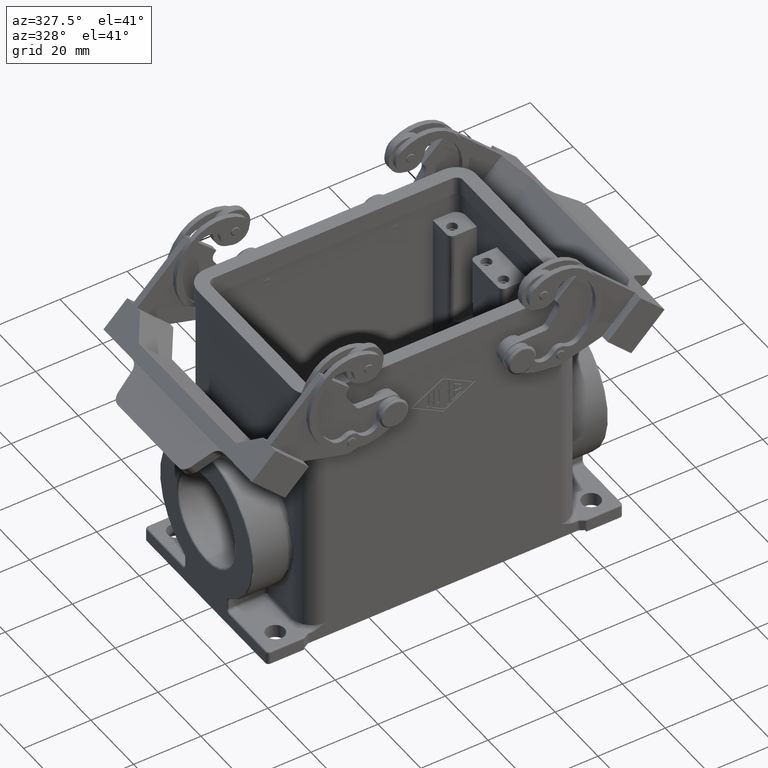
[diagram: clean part render]
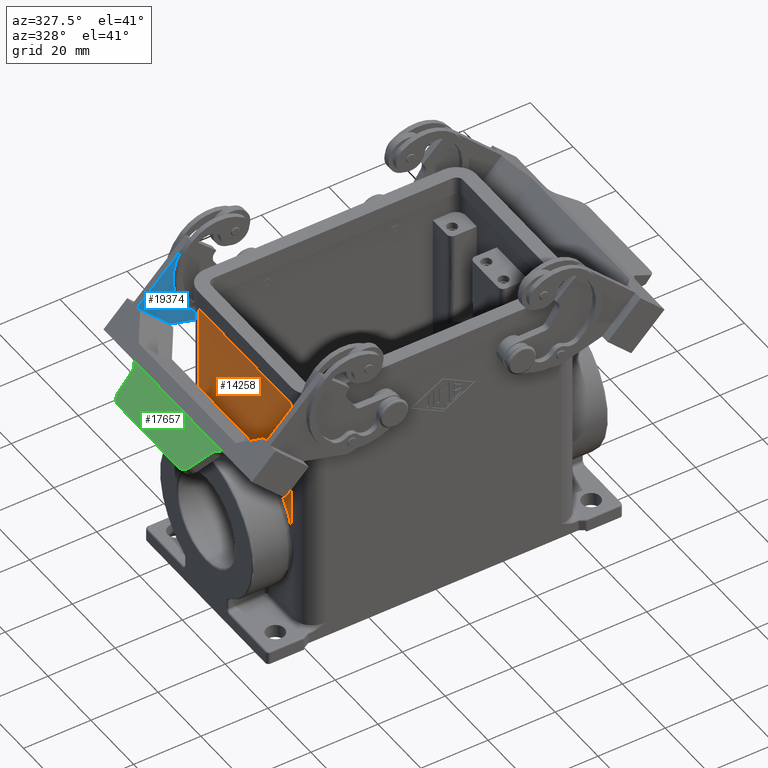
[diagram: same view with three faces highlighted in distinct colors, each labeled with its STEP entity id]
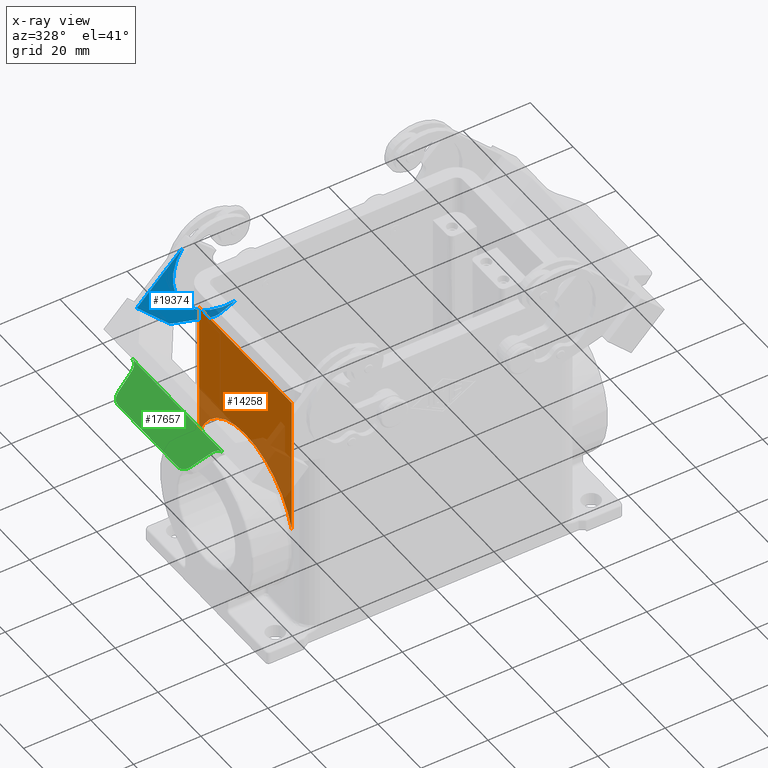
[diagram: x-ray of the same camera — body ghosted, the three highlighted faces saturated]
A machine part, auxiliary view with three faces highlighted in distinct colors.
The next image is the same camera in x-ray (body ghosted, the three faces saturated) — at least one of them is partly hidden behind the body in this view.
Their STEP definitions:

[orange] entity #14258 — the highlighted planar face has unit normal (-1, 0, 0).
#8415=CARTESIAN_POINT('',(-41.250000000000000,2.991101E-015,-2.250000000000007));
#8416=VERTEX_POINT('',#8415);
#8432=CARTESIAN_POINT('',(-41.249999999999986,-21.650000000000020,-18.011437916137609));
#8433=VERTEX_POINT('',#8432);
#8441=CARTESIAN_POINT('',(-41.250000000000000,2.051220E-016,-25.000000000000007));
#8442=DIRECTION('',(-1.0,0.0,0.0));
#8443=DIRECTION('',(0.0,0.0,1.0));
#8444=AXIS2_PLACEMENT_3D('',#8441,#8442,#8443);
#8445=CIRCLE('',#8444,22.750000000000000);
#8446=EDGE_CURVE('',#8433,#8416,#8445,.T.);
#13549=CARTESIAN_POINT('',(-41.250000000000007,21.649999999999999,-18.011437916137552));
#13550=VERTEX_POINT('',#13549);
#13551=CARTESIAN_POINT('',(-41.250000000000000,2.051220E-016,-25.000000000000007));
#13552=DIRECTION('',(-1.0,0.0,0.0));
#13553=DIRECTION('',(0.0,0.0,1.0));
#13554=AXIS2_PLACEMENT_3D('',#13551,#13552,#13553);
#13555=CIRCLE('',#13554,22.750000000000000);
#13556=EDGE_CURVE('',#8416,#13550,#13555,.T.);
#14215=CARTESIAN_POINT('',(-41.250000000000007,21.649999999999999,24.0));
#14216=VERTEX_POINT('',#14215);
#14217=CARTESIAN_POINT('',(-41.250000000000007,21.649999999999999,-18.011437916137552));
#14218=DIRECTION('',(0.0,0.0,1.0));
#14219=VECTOR('',#14218,42.011437916137552);
#14220=LINE('',#14217,#14219);
#14221=EDGE_CURVE('',#13550,#14216,#14220,.T.);
#14234=CARTESIAN_POINT('',(-41.250000000000000,-21.650000000000009,1.500000000000000));
#14235=DIRECTION('',(-1.0,0.0,0.0));
#14236=DIRECTION('',(0.0,0.0,1.0));
#14237=AXIS2_PLACEMENT_3D('',#14234,#14235,#14236);
#14238=PLANE('',#14237);
#14239=ORIENTED_EDGE('',*,*,#8446,.F.);
#14240=CARTESIAN_POINT('',(-41.250000000000000,-21.650000000000009,24.0));
#14241=VERTEX_POINT('',#14240);
#14242=CARTESIAN_POINT('',(-41.250000000000000,-21.650000000000009,24.0));
#14243=DIRECTION('',(0.0,0.0,-1.0));
#14244=VECTOR('',#14243,42.011437916137609);
#14245=LINE('',#14242,#14244);
#14246=EDGE_CURVE('',#14241,#8433,#14245,.T.);
#14247=ORIENTED_EDGE('',*,*,#14246,.F.);
#14248=CARTESIAN_POINT('',(-41.250000000000000,-21.650000000000009,24.0));
#14249=DIRECTION('',(0.0,1.0,0.0));
#14250=VECTOR('',#14249,43.300000000000011);
#14251=LINE('',#14248,#14250);
#14252=EDGE_CURVE('',#14241,#14216,#14251,.T.);
#14253=ORIENTED_EDGE('',*,*,#14252,.T.);
#14254=ORIENTED_EDGE('',*,*,#14221,.F.);
#14255=ORIENTED_EDGE('',*,*,#13556,.F.);
#14256=EDGE_LOOP('',(#14239,#14247,#14253,#14254,#14255));
#14257=FACE_OUTER_BOUND('',#14256,.T.);
#14258=ADVANCED_FACE('',(#14257),#14238,.T.);

[blue] entity #19374 — the highlighted face is a freeform B-spline surface patch.
#17845=CARTESIAN_POINT('',(-54.353989873223355,30.150000000000002,23.743989873223342));
#17846=VERTEX_POINT('',#17845);
#17847=CARTESIAN_POINT('',(-44.454718625761444,30.150000000000002,13.844718625761416));
#17848=VERTEX_POINT('',#17847);
#17849=CARTESIAN_POINT('',(-54.353989873223355,30.150000000000002,23.743989873223342));
#17850=DIRECTION('',(0.707106781186547,0.0,-0.707106781186548));
#17851=VECTOR('',#17850,13.999683655770673);
#17852=LINE('',#17849,#17851);
#17853=EDGE_CURVE('',#17846,#17848,#17852,.T.);
#17966=CARTESIAN_POINT('',(-44.456067811865481,30.150000000000002,13.843369439657380));
#17967=VERTEX_POINT('',#17966);
#17984=CARTESIAN_POINT('',(-44.455844122715718,30.150000000000002,13.843145750507624));
#17985=VERTEX_POINT('',#17984);
#17992=CARTESIAN_POINT('',(-44.456067811865481,30.150000000000002,13.843369439657380));
#17993=DIRECTION('',(0.707106781197778,0.0,-0.707106781175317));
#17994=VECTOR('',#17993,0.000316344229346);
#17995=LINE('',#17992,#17994);
#17996=EDGE_CURVE('',#17967,#17985,#17995,.T.);
#18192=CARTESIAN_POINT('',(-44.454718625761444,30.150000000000002,13.844718625761416));
#18193=DIRECTION('',(-0.707106781186548,0.0,-0.707106781186548));
#18194=VECTOR('',#18193,0.001908037286494);
#18195=LINE('',#18192,#18194);
#18196=EDGE_CURVE('',#17848,#17967,#18195,.T.);
#19324=CARTESIAN_POINT('',(-54.353989873223362,30.150000000000002,10.186648634762046));
#19325=CARTESIAN_POINT('',(-54.353989873223362,30.150000000000002,37.306817691909700));
#19326=CARTESIAN_POINT('',(-25.172482134557146,30.150000000000002,10.186648634762046));
#19327=CARTESIAN_POINT('',(-25.172482134557150,30.150000000000002,37.306817691909700));
#19328=B_SPLINE_SURFACE_WITH_KNOTS('',1,1,((#19324,#19326),(#19325,#19327)),.UNSPECIFIED.,.F.,.F.,.U.,(2,2),(2,2),(0.0,27.120169057147656),(0.0,29.181507738666216),.UNSPECIFIED.);
#19329=ORIENTED_EDGE('',*,*,#18196,.T.);
#19330=ORIENTED_EDGE('',*,*,#17996,.T.);
#19331=CARTESIAN_POINT('',(-32.479281828250954,30.150000000000002,10.383094362622636));
#19332=VERTEX_POINT('',#19331);
#19333=CARTESIAN_POINT('',(-44.455844122715718,30.150000000000002,13.843145750507624));
#19334=DIRECTION('',(0.960710854427883,0.0,-0.277551173992197));
#19335=VECTOR('',#19334,12.466354719804819);
#19336=LINE('',#19333,#19335);
#19337=EDGE_CURVE('',#17985,#19332,#19336,.T.);
#19338=ORIENTED_EDGE('',*,*,#19337,.T.);
#19339=CARTESIAN_POINT('',(-29.049860753105285,30.150000000000002,10.622483520533779));
#19340=VERTEX_POINT('',#19339);
#19341=CARTESIAN_POINT('',(-31.091525958289985,30.150000000000002,15.186648634762046));
#19342=DIRECTION('',(0.0,-1.000000000000000,0.0));
#19343=DIRECTION('',(-0.408333041036936,0.0,0.912833022845651));
#19344=AXIS2_PLACEMENT_3D('',#19341,#19342,#19343);
#19345=CIRCLE('',#19344,5.0);
#19346=EDGE_CURVE('',#19332,#19340,#19345,.T.);
#19347=ORIENTED_EDGE('',*,*,#19346,.T.);
#19348=CARTESIAN_POINT('',(-25.172482134557150,30.150000000000002,12.356931949697438));
#19349=VERTEX_POINT('',#19348);
#19350=CARTESIAN_POINT('',(-29.049860753105285,30.150000000000002,10.622483520533779));
#19351=DIRECTION('',(0.912833022845650,0.0,0.408333041036936));
#19352=VECTOR('',#19351,4.247631846688521);
#19353=LINE('',#19350,#19352);
#19354=EDGE_CURVE('',#19340,#19349,#19353,.T.);
#19355=ORIENTED_EDGE('',*,*,#19354,.T.);
#19356=CARTESIAN_POINT('',(-40.791162054536983,30.150000000000002,37.306817691909700));
#19357=VERTEX_POINT('',#19356);
#19358=CARTESIAN_POINT('',(-27.662058069535220,30.150000000000002,28.162058069535210));
#19359=DIRECTION('',(0.0,-1.0,0.0));
#19360=DIRECTION('',(-0.707106781186548,0.0,0.707106781186547));
#19361=AXIS2_PLACEMENT_3D('',#19358,#19359,#19360);
#19362=CIRCLE('',#19361,16.0);
#19363=EDGE_CURVE('',#19357,#19349,#19362,.T.);
#19364=ORIENTED_EDGE('',*,*,#19363,.F.);
#19365=CARTESIAN_POINT('',(-40.791162054536983,30.150000000000002,37.306817691909700));
#19366=DIRECTION('',(-0.707106781186548,0.0,-0.707106781186547));
#19367=VECTOR('',#19366,19.180735045317359);
#19368=LINE('',#19365,#19367);
#19369=EDGE_CURVE('',#19357,#17846,#19368,.T.);
#19370=ORIENTED_EDGE('',*,*,#19369,.T.);
#19371=ORIENTED_EDGE('',*,*,#17853,.T.);
#19372=EDGE_LOOP('',(#19329,#19330,#19338,#19347,#19355,#19364,#19370,#19371));
#19373=FACE_OUTER_BOUND('',#19372,.T.);
#19374=ADVANCED_FACE('',(#19373),#19328,.F.);

[green] entity #17657 — the highlighted face is a freeform B-spline surface patch.
#6633=CARTESIAN_POINT('',(-61.907697420282439,-19.625696676910739,16.280969893944739));
#6634=VERTEX_POINT('',#6633);
#6703=CARTESIAN_POINT('',(-61.384460441164123,-21.403120128466306,16.633897692686958));
#6704=VERTEX_POINT('',#6703);
#6711=CARTESIAN_POINT('',(-63.917787621034954,-21.451980963936897,14.925146933915666));
#6712=DIRECTION('',(-0.559192903470747,0.0,0.829037572555042));
#6713=DIRECTION('',(0.829037572555042,0.0,0.559192903470747));
#6714=AXIS2_PLACEMENT_3D('',#6711,#6712,#6713);
#6715=ELLIPSE('',#6714,3.056150084865643,3.000000000000001);
#6716=EDGE_CURVE('',#6634,#6704,#6715,.F.);
#6726=CARTESIAN_POINT('',(-69.727251764699417,15.856534071072028,11.006613890723294));
#6727=VERTEX_POINT('',#6726);
#6736=CARTESIAN_POINT('',(-68.389708282677134,16.927359853116826,11.908798360994396));
#6737=VERTEX_POINT('',#6736);
#6738=CARTESIAN_POINT('',(-67.757822949064618,14.022007636042343,12.335010400183863));
#6739=DIRECTION('',(0.559192903470747,0.0,-0.829037572555042));
#6740=DIRECTION('',(0.0,1.0,0.0));
#6741=AXIS2_PLACEMENT_3D('',#6738,#6739,#6740);
#6742=ELLIPSE('',#6741,3.003918414024676,3.000000000000001);
#6743=EDGE_CURVE('',#6727,#6737,#6742,.T.);
#6770=CARTESIAN_POINT('',(-69.727251764699417,-15.856534071072030,11.006613890723294));
#6771=VERTEX_POINT('',#6770);
#6787=CARTESIAN_POINT('',(-68.389708282677134,-16.927359853116826,11.908798360994396));
#6788=VERTEX_POINT('',#6787);
#6795=CARTESIAN_POINT('',(-67.757822949064618,-14.022007636042343,12.335010400183863));
#6796=DIRECTION('',(0.559192903470747,0.0,-0.829037572555042));
#6797=DIRECTION('',(0.0,-1.0,0.0));
#6798=AXIS2_PLACEMENT_3D('',#6795,#6796,#6797);
#6799=ELLIPSE('',#6798,3.003918414024676,3.000000000000001);
#6800=EDGE_CURVE('',#6788,#6771,#6799,.T.);
#6862=CARTESIAN_POINT('',(-61.907697420282439,19.625696676910735,16.280969893944746));
#6863=VERTEX_POINT('',#6862);
#6890=CARTESIAN_POINT('',(-63.262027318648478,18.554203485069692,15.367462842882516));
#6891=VERTEX_POINT('',#6890);
#6898=CARTESIAN_POINT('',(-63.917787621034954,21.451980963936897,14.925146933915672));
#6899=DIRECTION('',(-0.559192903470747,-2.465190E-032,0.829037572555042));
#6900=DIRECTION('',(0.829037572555042,4.540938E-016,0.559192903470747));
#6901=AXIS2_PLACEMENT_3D('',#6898,#6899,#6900);
#6902=ELLIPSE('',#6901,3.056150084865643,3.0);
#6903=EDGE_CURVE('',#6891,#6863,#6902,.T.);
#17025=CARTESIAN_POINT('',(-61.384460441164123,21.403120128465822,16.633897692686954));
#17026=VERTEX_POINT('',#17025);
#17027=CARTESIAN_POINT('',(-63.917787621034954,21.451980963936897,14.925146933915672));
#17028=DIRECTION('',(-0.559192903470747,-2.465190E-032,0.829037572555042));
#17029=DIRECTION('',(0.829037572555042,4.540938E-016,0.559192903470747));
#17030=AXIS2_PLACEMENT_3D('',#17027,#17028,#17029);
#17031=ELLIPSE('',#17030,3.056150084865643,3.0);
#17032=EDGE_CURVE('',#6863,#17026,#17031,.T.);
#17102=CARTESIAN_POINT('',(-63.262027318648478,18.554203485069692,15.367462842882516));
#17103=DIRECTION('',(-0.801767105395475,-0.254374193494504,-0.540798741113348));
#17104=VECTOR('',#17103,6.395474358478959);
#17105=LINE('',#17102,#17104);
#17106=EDGE_CURVE('',#6891,#6737,#17105,.T.);
#17202=CARTESIAN_POINT('',(-70.244935666729745,-14.022007636042343,10.657431689771622));
#17203=VERTEX_POINT('',#17202);
#17204=CARTESIAN_POINT('',(-67.757822949064618,-14.022007636042343,12.335010400183863));
#17205=DIRECTION('',(0.559192903470747,0.0,-0.829037572555042));
#17206=DIRECTION('',(0.0,-1.0,0.0));
#17207=AXIS2_PLACEMENT_3D('',#17204,#17205,#17206);
#17208=ELLIPSE('',#17207,3.003918414024676,3.000000000000001);
#17209=EDGE_CURVE('',#6771,#17203,#17208,.T.);
#17227=CARTESIAN_POINT('',(-63.262027318648478,-18.554203485069689,15.367462842882510));
#17228=VERTEX_POINT('',#17227);
#17235=CARTESIAN_POINT('',(-68.389708282677134,-16.927359853116826,11.908798360994396));
#17236=DIRECTION('',(0.801767105395475,-0.254374193494504,0.540798741113348));
#17237=VECTOR('',#17236,6.395474358478955);
#17238=LINE('',#17235,#17237);
#17239=EDGE_CURVE('',#6788,#17228,#17238,.T.);
#17252=CARTESIAN_POINT('',(-70.244935666729745,14.022007636042343,10.657431689771622));
#17253=VERTEX_POINT('',#17252);
#17260=CARTESIAN_POINT('',(-67.757822949064618,14.022007636042343,12.335010400183863));
#17261=DIRECTION('',(0.559192903470747,0.0,-0.829037572555042));
#17262=DIRECTION('',(0.0,1.0,0.0));
#17263=AXIS2_PLACEMENT_3D('',#17260,#17261,#17262);
#17264=ELLIPSE('',#17263,3.003918414024676,3.000000000000001);
#17265=EDGE_CURVE('',#17253,#6727,#17264,.T.);
#17276=CARTESIAN_POINT('',(-63.917787621034954,-21.451980963936897,14.925146933915666));
#17277=DIRECTION('',(-0.559192903470747,0.0,0.829037572555042));
#17278=DIRECTION('',(0.829037572555042,0.0,0.559192903470747));
#17279=AXIS2_PLACEMENT_3D('',#17276,#17277,#17278);
#17280=ELLIPSE('',#17279,3.056150084865643,3.000000000000001);
#17281=EDGE_CURVE('',#17228,#6634,#17280,.F.);
#17545=CARTESIAN_POINT('',(-61.384460441164123,-21.403120128466306,16.633897692686958));
#17546=DIRECTION('',(0.0,1.0,0.0));
#17547=VECTOR('',#17546,42.806240256932128);
#17548=LINE('',#17545,#17547);
#17549=EDGE_CURVE('',#6704,#17026,#17548,.T.);
#17628=CARTESIAN_POINT('',(-70.244935666729745,-14.022007636042343,10.657431689771622));
#17629=DIRECTION('',(0.0,1.0,0.0));
#17630=VECTOR('',#17629,28.044015272084685);
#17631=LINE('',#17628,#17630);
#17632=EDGE_CURVE('',#17203,#17253,#17631,.T.);
#17638=CARTESIAN_POINT('',(-61.384460441164123,21.403120128465822,16.633897692686961));
#17639=CARTESIAN_POINT('',(-70.244935666729745,21.403120128465822,10.657431689771622));
#17640=CARTESIAN_POINT('',(-61.384460441164123,-21.403120128466306,16.633897692686961));
#17641=CARTESIAN_POINT('',(-70.244935666729731,-21.403120128466306,10.657431689771624));
#17642=B_SPLINE_SURFACE_WITH_KNOTS('',1,1,((#17638,#17640),(#17639,#17641)),.UNSPECIFIED.,.F.,.F.,.U.,(2,2),(2,2),(0.0,10.687664249351446),(0.0,42.806240256932128),.UNSPECIFIED.);
#17643=ORIENTED_EDGE('',*,*,#6800,.F.);
#17644=ORIENTED_EDGE('',*,*,#17239,.T.);
#17645=ORIENTED_EDGE('',*,*,#17281,.T.);
#17646=ORIENTED_EDGE('',*,*,#6716,.T.);
#17647=ORIENTED_EDGE('',*,*,#17549,.T.);
#17648=ORIENTED_EDGE('',*,*,#17032,.F.);
#17649=ORIENTED_EDGE('',*,*,#6903,.F.);
#17650=ORIENTED_EDGE('',*,*,#17106,.T.);
#17651=ORIENTED_EDGE('',*,*,#6743,.F.);
#17652=ORIENTED_EDGE('',*,*,#17265,.F.);
#17653=ORIENTED_EDGE('',*,*,#17632,.F.);
#17654=ORIENTED_EDGE('',*,*,#17209,.F.);
#17655=EDGE_LOOP('',(#17643,#17644,#17645,#17646,#17647,#17648,#17649,#17650,#17651,#17652,#17653,#17654));
#17656=FACE_OUTER_BOUND('',#17655,.T.);
#17657=ADVANCED_FACE('',(#17656),#17642,.T.);